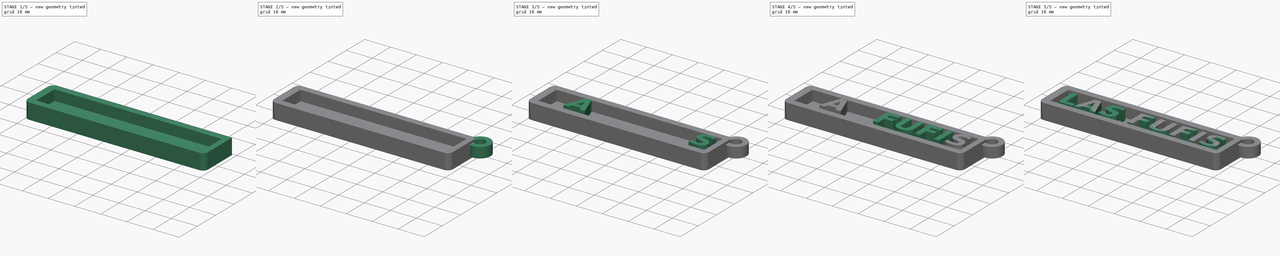
[diagram: build sequence overview — one tinted view per stage of 5, left to right]
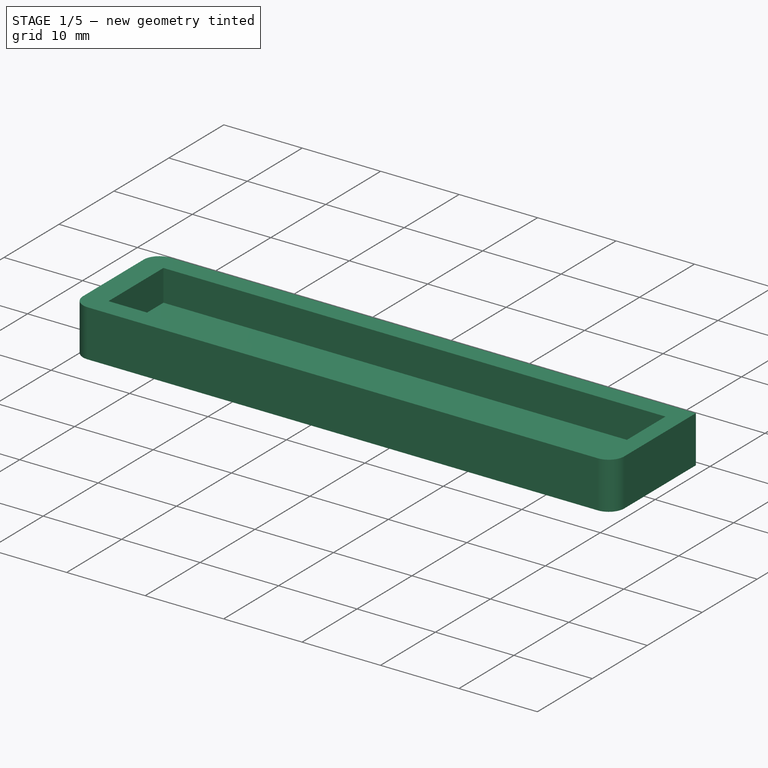
[diagram: stage 1 of 5 — iso view after this stage's code; geometry added in this stage tinted green]
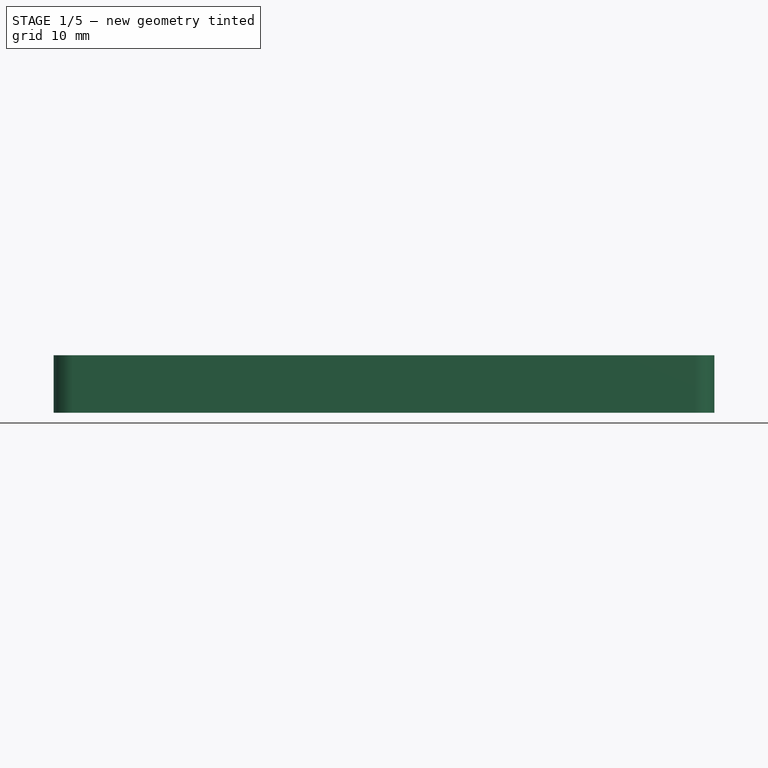
[diagram: stage 1 of 5 — front view after this stage's code; geometry added in this stage tinted green]
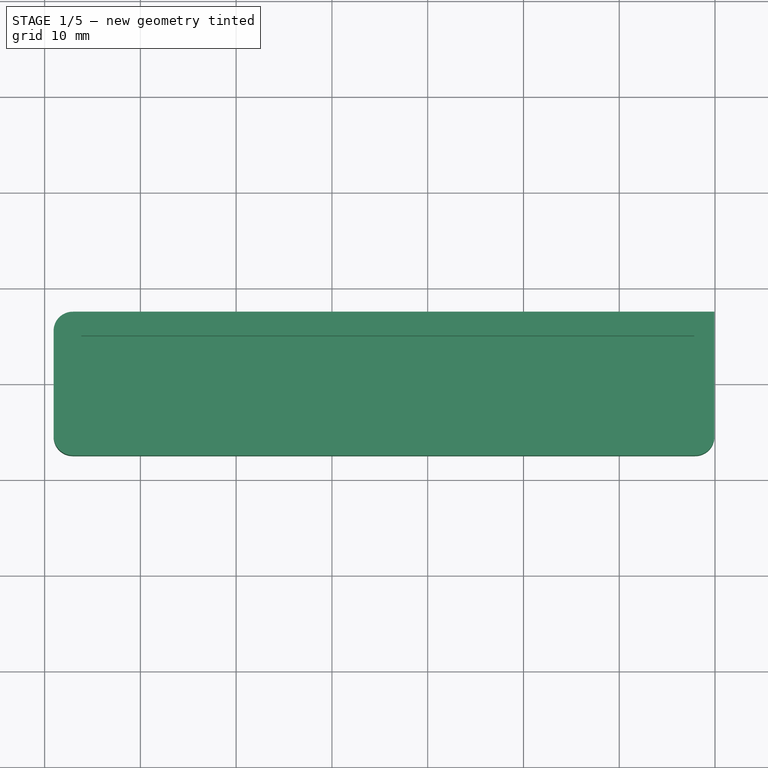
[diagram: stage 1 of 5 — top view after this stage's code; geometry added in this stage tinted green]
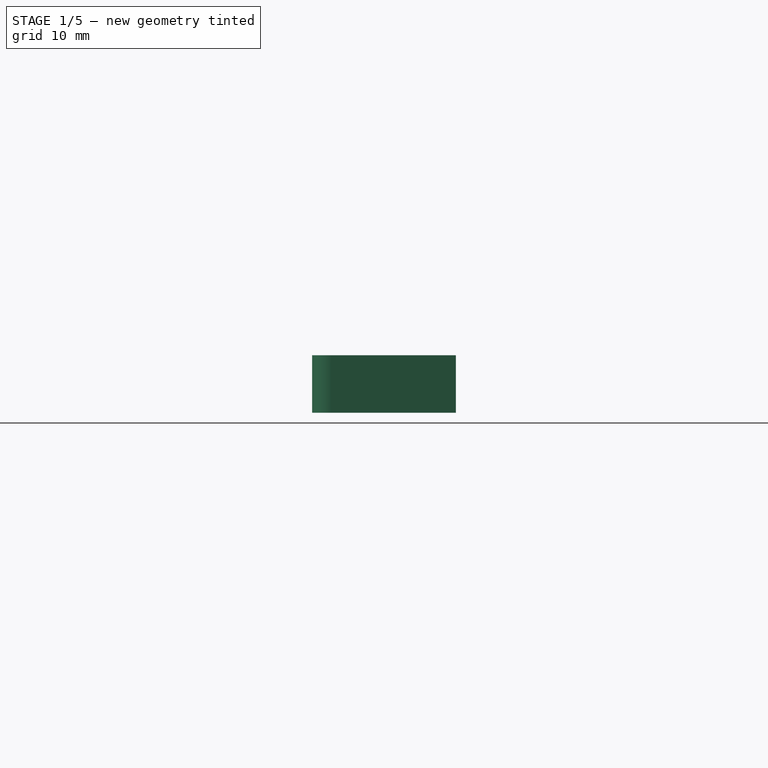
[diagram: stage 1 of 5 — right view after this stage's code; geometry added in this stage tinted green]
FCSTD DOCUMENT  (FreeCAD 0.16R6706 (Git))
Label: FUFIS
License: CreativeCommons Attribution-ShareAlike
LicenseURL: http://creativecommons.org/licenses/by-sa/4.0/
objects: Part::Feature×9, Part::Extrusion×9, Part::Cut×3, Part::MultiFuse×2, Sketcher::SketchObject×2, PartDesign::Pad×2, Part::Cylinder×2, Part::Fillet×2
note: 33 computed .brp shape members not serialized (recipe doc carries the construction recipe); baked Part::Feature solids carry a one-line shape summary decoded from their .brp

FEATURE [Sketcher::SketchObject] Sketch
  sketch-geometry (4):
    g0: LineSegment StartX=-26.1818 StartY=5 StartZ=0 EndX=37.8182 EndY=5 EndZ=0
    g1: LineSegment StartX=37.8182 StartY=5 StartZ=0 EndX=37.8182 EndY=-5 EndZ=0
    g2: LineSegment StartX=37.8182 StartY=-5 StartZ=0 EndX=-26.1818 EndY=-5 EndZ=0
    g3: LineSegment StartX=-26.1818 StartY=-5 StartZ=0 EndX=-26.1818 EndY=5 EndZ=0
  constraints (11):
    c: Coincident(g0,g1)
    c: Coincident(g1,g2)
    c: Coincident(g2,g3)
    c: Coincident(g3,g0)
    c: Horizontal(g0)
    c: Horizontal(g2)
    c: Vertical(g1)
    c: Vertical(g3)
    c: DistanceX(g0,g0) = 64
    c: DistanceY(g3,g3) = 10
    c: Symmetric(g0,g2,g-1)
FEATURE [PartDesign::Pad] Pad
  Length = 4
  Length2 = 100
  Sketch = -> Sketch
  Type = 0
FEATURE [Sketcher::SketchObject] Sketch001
  Placement = pos=(0,0,-2) rot=(0,0,1;0rad)
  sketch-geometry (4):
    g0: LineSegment StartX=-29.063 StartY=7.5 StartZ=0 EndX=39.937 EndY=7.5 EndZ=0
    g1: LineSegment StartX=39.937 StartY=7.5 StartZ=0 EndX=39.937 EndY=-7.5 EndZ=0
    g2: LineSegment StartX=39.937 StartY=-7.5 StartZ=0 EndX=-29.063 EndY=-7.5 EndZ=0
    g3: LineSegment StartX=-29.063 StartY=-7.5 StartZ=0 EndX=-29.063 EndY=7.5 EndZ=0
  constraints (11):
    c: Coincident(g0,g1)
    c: Coincident(g1,g2)
    c: Coincident(g2,g3)
    c: Coincident(g3,g0)
    c: Horizontal(g0)
    c: Horizontal(g2)
    c: Vertical(g1)
    c: Vertical(g3)
    c: DistanceY(g1,g1) = 15
    c: DistanceX(g2,g2) = 69
    c: Symmetric(g0,g2,g-1)
FEATURE [PartDesign::Pad] Pad001
  Length = 6
  Length2 = 100
  Placement = pos=(0,0,-2) rot=(0,0,1;0rad)
  Sketch = -> Sketch001
  Type = 0
FEATURE [Part::Cut] Cut001
  Base = -> Pad001
  Tool = -> Pad
FEATURE [Part::Fillet] Fillet
  Base = -> Cut001
  Edges = 3 edges r=2: [Edge1,Edge5,Edge8]
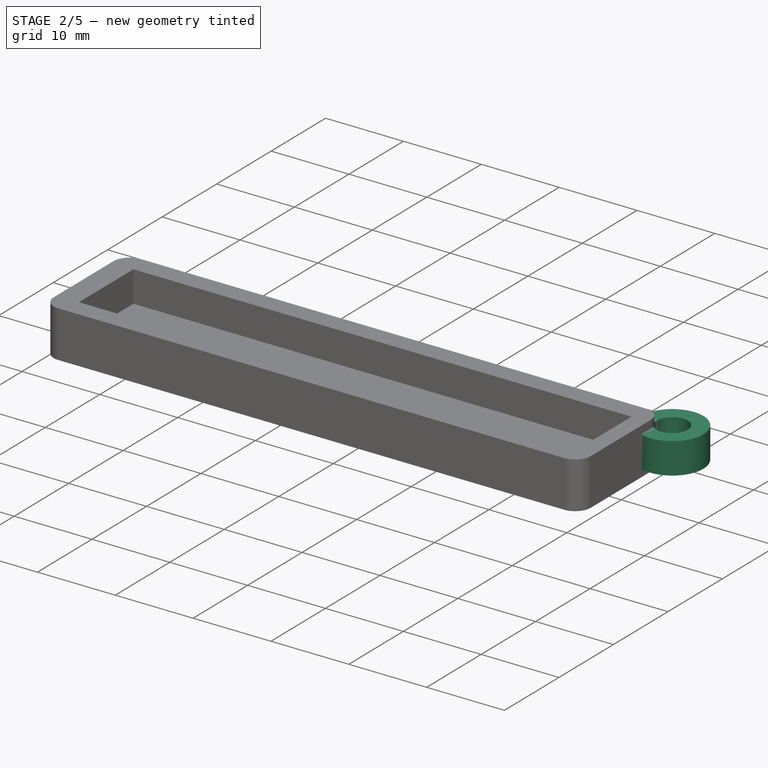
[diagram: stage 2 of 5 — iso view after this stage's code; geometry added in this stage tinted green]
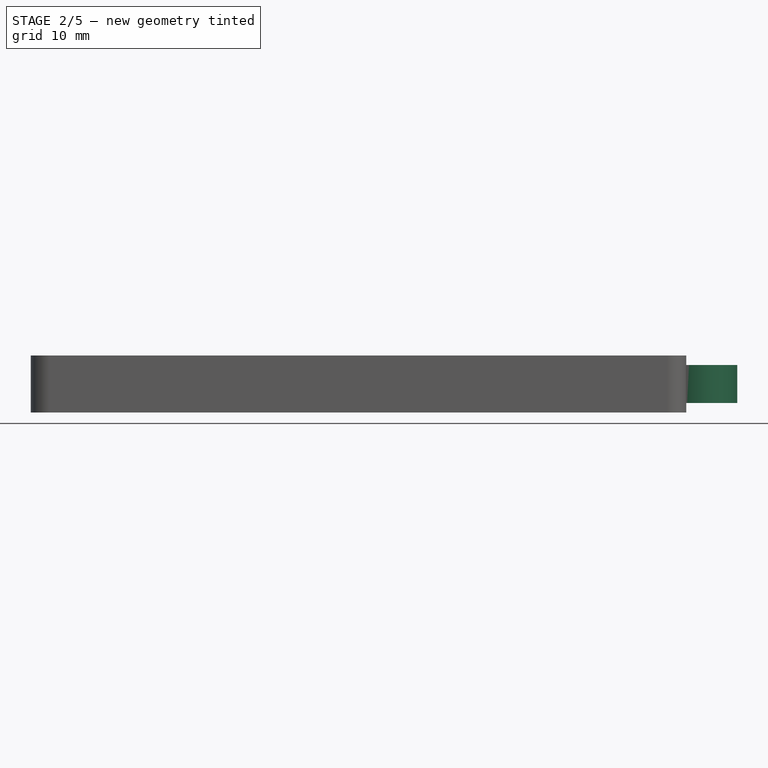
[diagram: stage 2 of 5 — front view after this stage's code; geometry added in this stage tinted green]
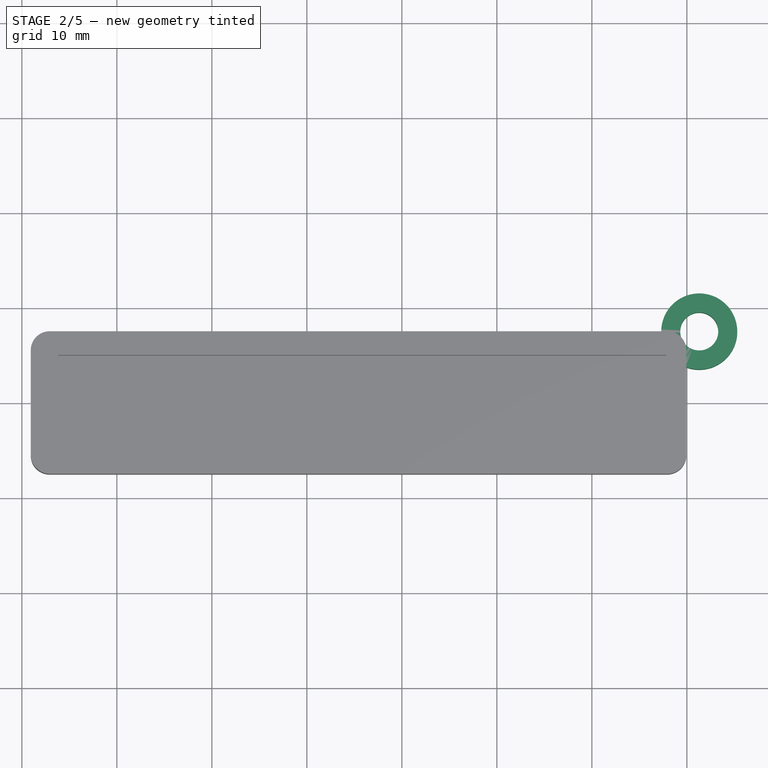
[diagram: stage 2 of 5 — top view after this stage's code; geometry added in this stage tinted green]
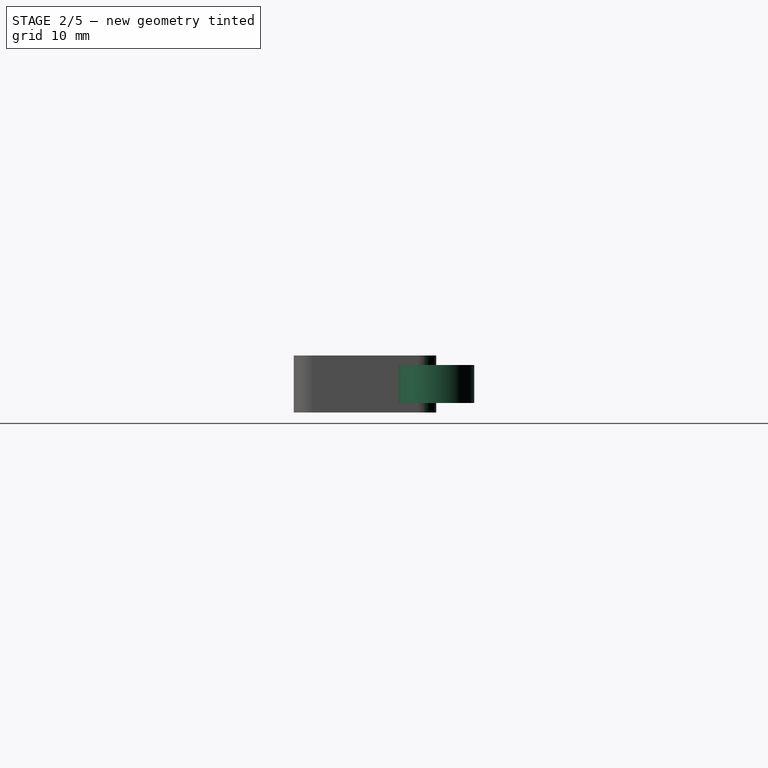
[diagram: stage 2 of 5 — right view after this stage's code; geometry added in this stage tinted green]
FEATURE [Part::Cylinder] Cylinder  label="Cilindro"
  Angle = 360
  Height = 4
  Radius = 4
FEATURE [Part::Cylinder] Cylinder001  label="Cilindro001"
  Angle = 360
  Height = 10
  Placement = pos=(0,0,-3) rot=(0,0,1;0rad)
  Radius = 2
FEATURE [Part::Cut] Cut005  label="aro"
  Base = -> Cylinder
  Placement = pos=(41.3,7.5,-1) rot=(0,0,1;0rad)
  Tool = -> Cylinder001
FEATURE [Part::Fillet] Fillet001
  Base = -> Fillet
  Edges = 1 edges r=2: [Edge3]
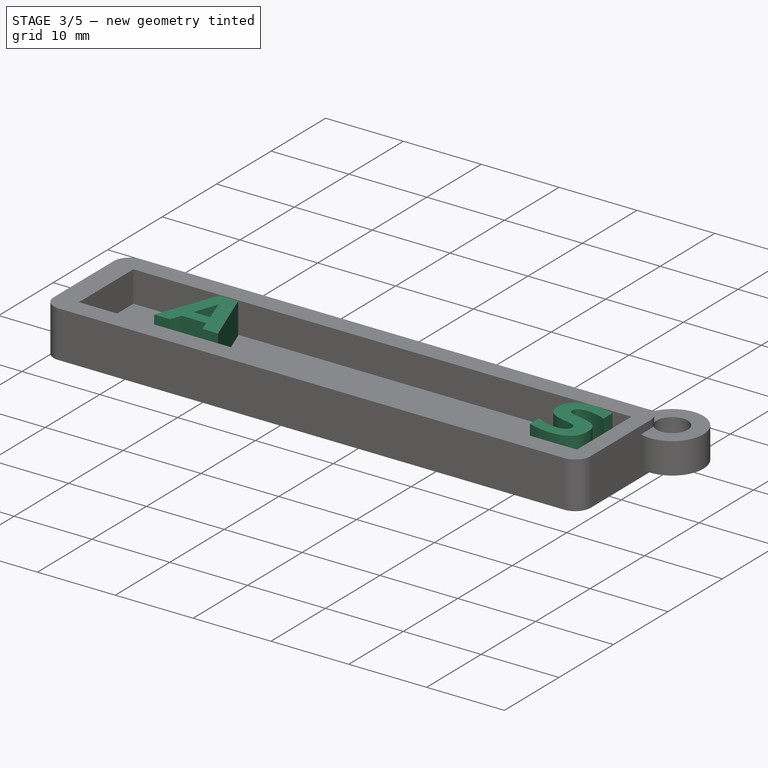
[diagram: stage 3 of 5 — iso view after this stage's code; geometry added in this stage tinted green]
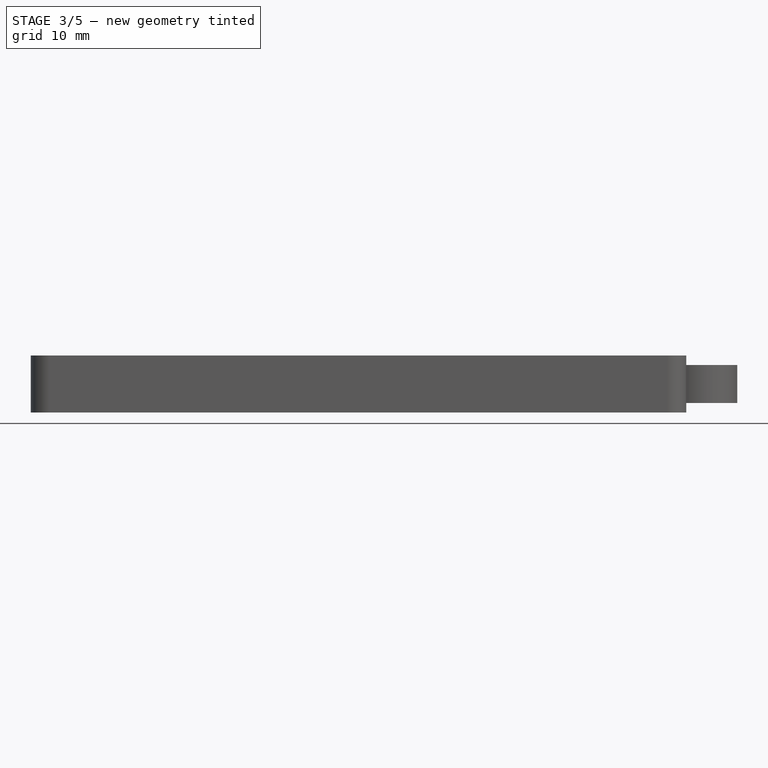
[diagram: stage 3 of 5 — front view after this stage's code; geometry added in this stage tinted green]
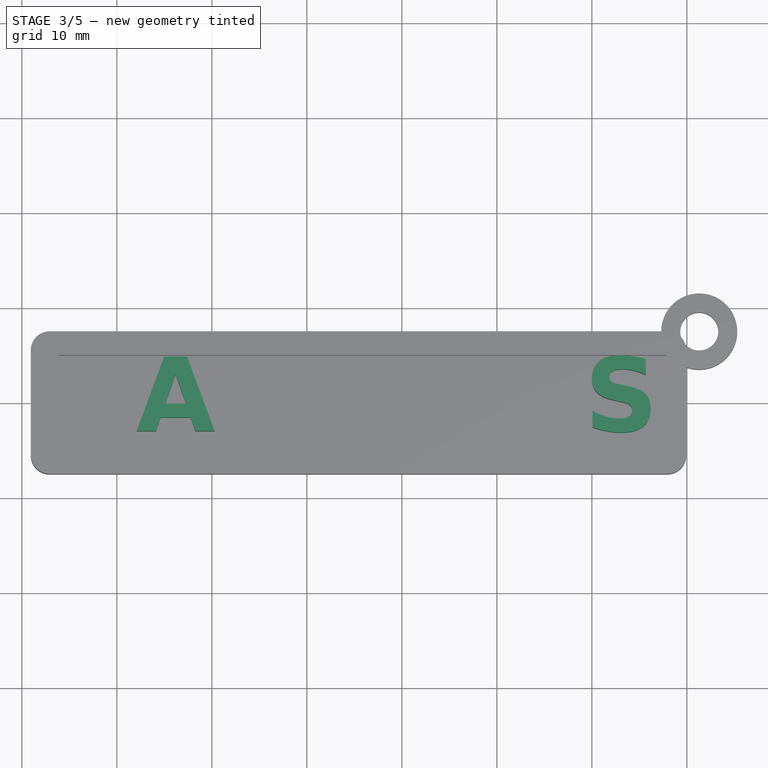
[diagram: stage 3 of 5 — top view after this stage's code; geometry added in this stage tinted green]
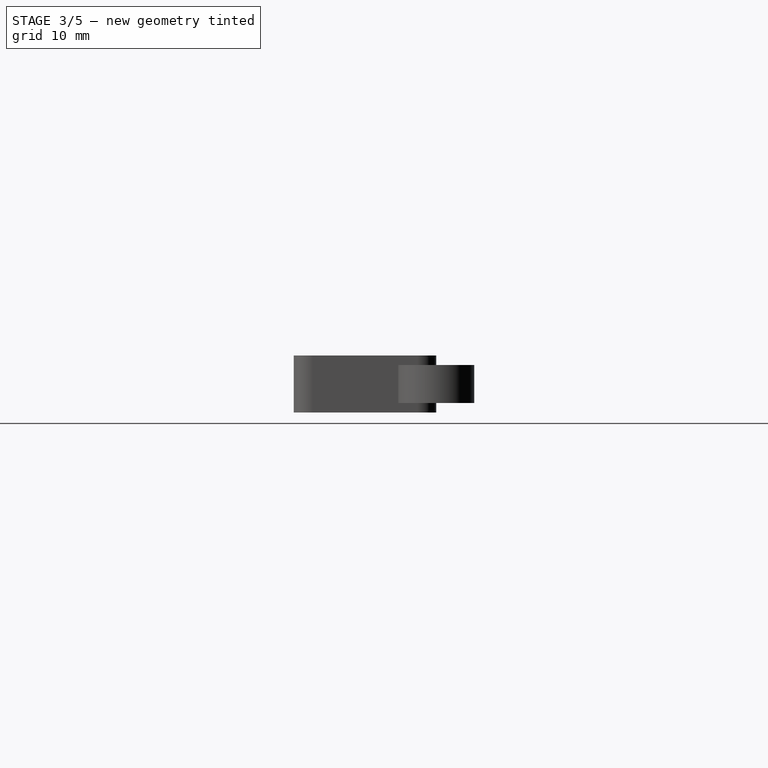
[diagram: stage 3 of 5 — right view after this stage's code; geometry added in this stage tinted green]
FEATURE [Part::Extrusion] Extrude001
  Base = -> path3343
  Dir = (0,0,4)
  Solid = true
FEATURE [Part::Extrusion] Extrude002
  Base = -> path3343001
  Dir = (0,0,4)
  Solid = true
FEATURE [Part::Extrusion] Extrude008
  Base = -> path3355
  Dir = (0,0,4)
  Solid = true
FEATURE [Part::Cut] Cut
  Base = -> Extrude001
  Tool = -> Extrude002
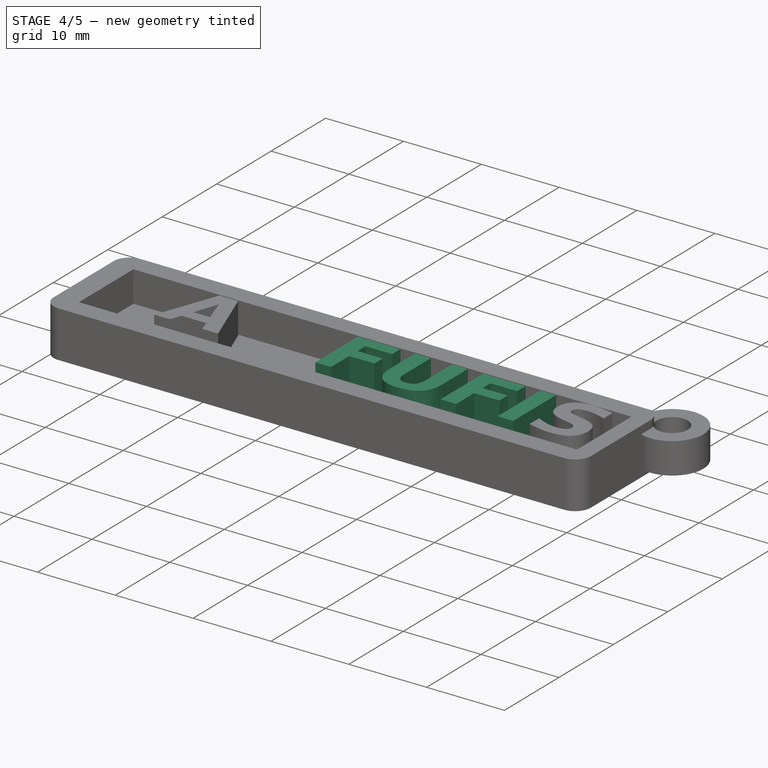
[diagram: stage 4 of 5 — iso view after this stage's code; geometry added in this stage tinted green]
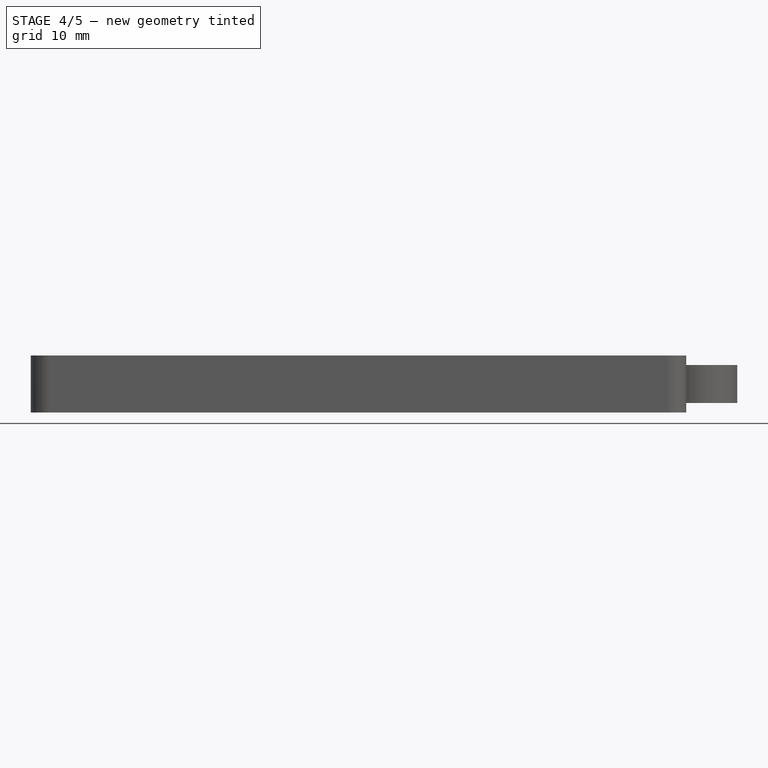
[diagram: stage 4 of 5 — front view after this stage's code; geometry added in this stage tinted green]
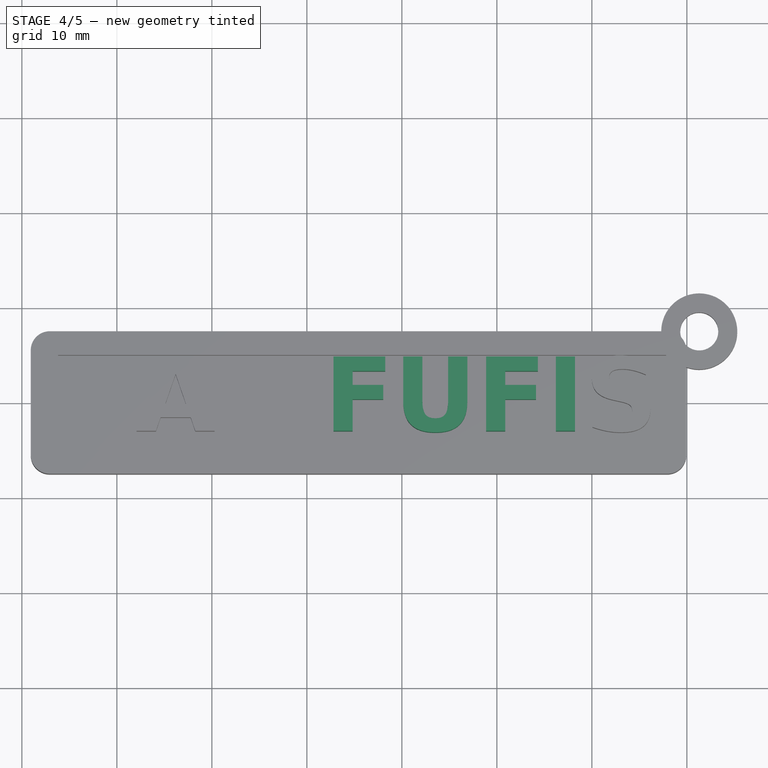
[diagram: stage 4 of 5 — top view after this stage's code; geometry added in this stage tinted green]
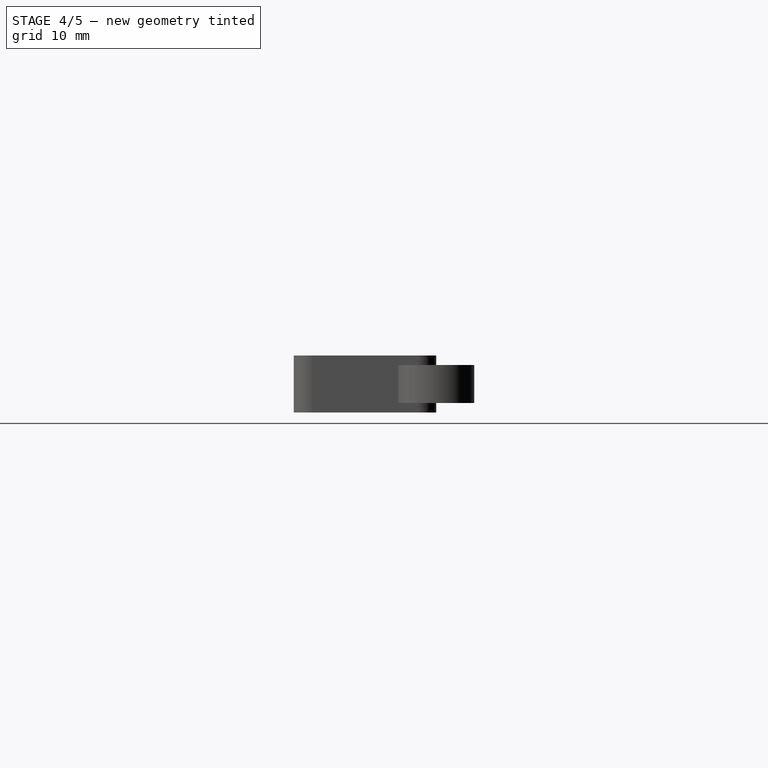
[diagram: stage 4 of 5 — right view after this stage's code; geometry added in this stage tinted green]
FEATURE [Part::Extrusion] Extrude004
  Base = -> path3347
  Dir = (0,0,4)
  Solid = true
FEATURE [Part::Extrusion] Extrude005
  Base = -> path3349
  Dir = (0,0,4)
  Solid = true
FEATURE [Part::Extrusion] Extrude006
  Base = -> path3351
  Dir = (0,0,4)
  Solid = true
FEATURE [Part::Extrusion] Extrude007
  Base = -> path3353
  Dir = (0,0,4)
  Solid = true
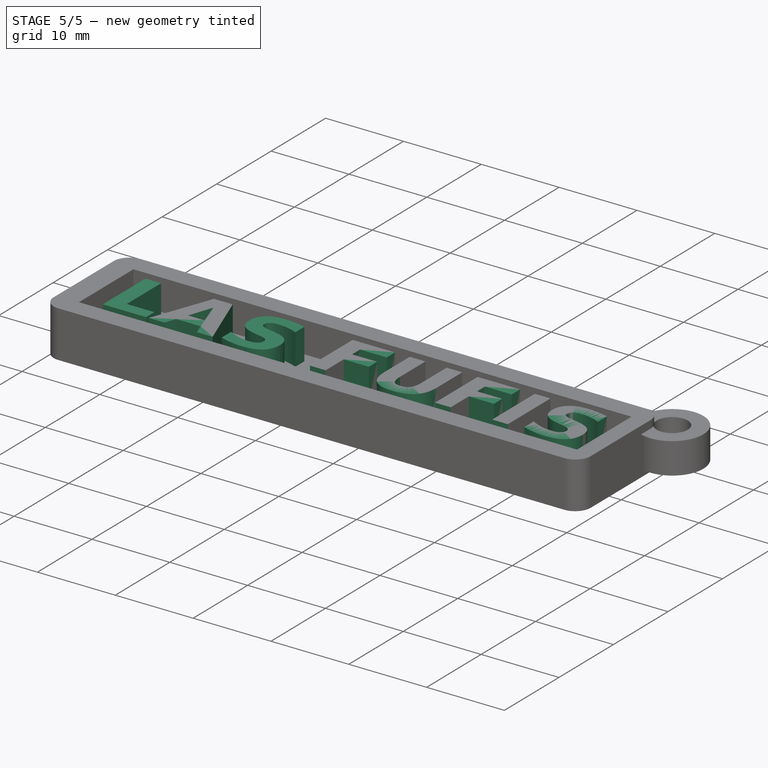
[diagram: stage 5 of 5 — iso view after this stage's code; geometry added in this stage tinted green]
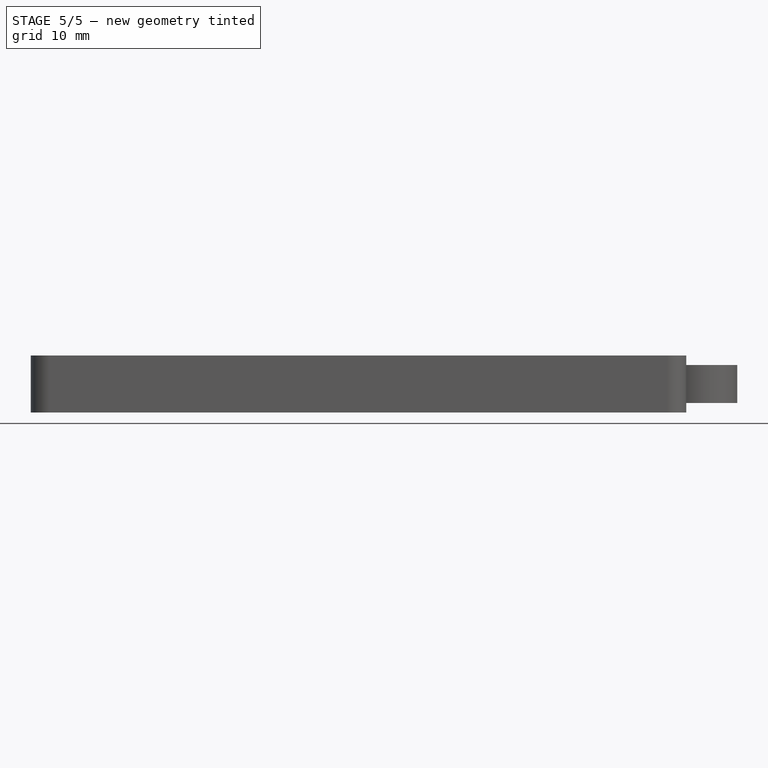
[diagram: stage 5 of 5 — front view after this stage's code; geometry added in this stage tinted green]
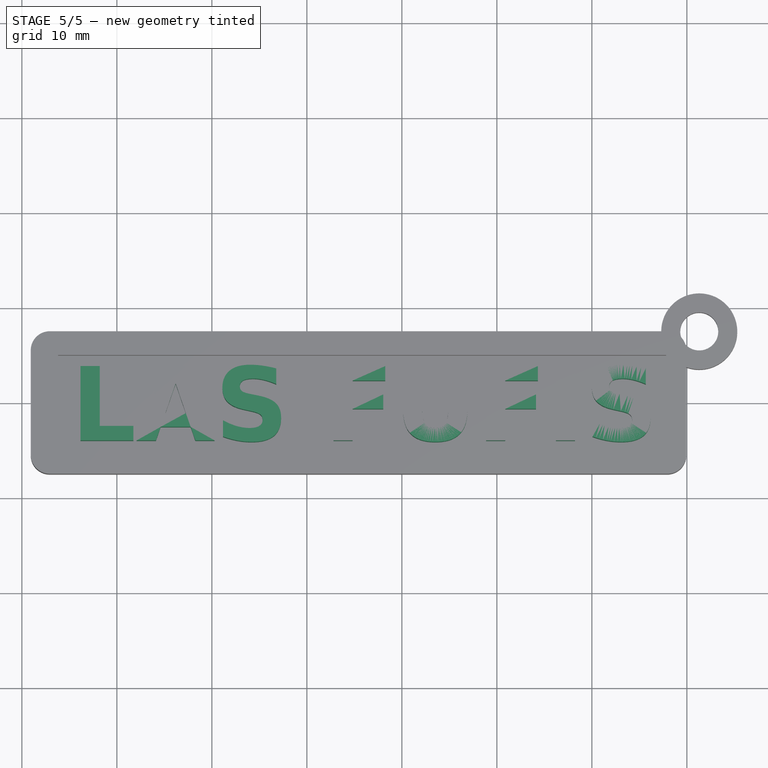
[diagram: stage 5 of 5 — top view after this stage's code; geometry added in this stage tinted green]
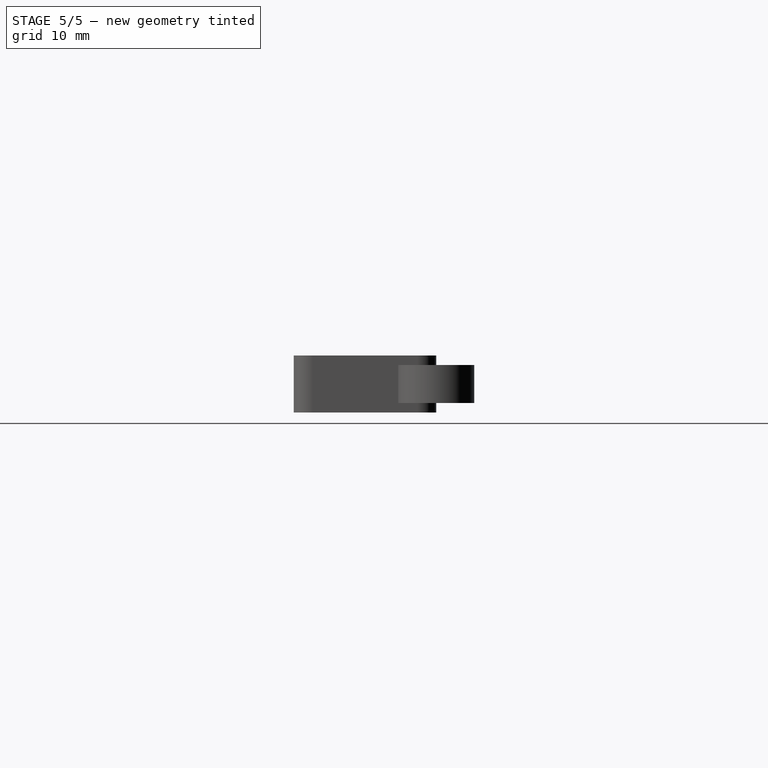
[diagram: stage 5 of 5 — right view after this stage's code; geometry added in this stage tinted green]
FEATURE [Part::Feature] path3341
  shape: bbox 5.564 x 7.83 x 2e-07 mm, 0 faces, 0 solids (baked)
FEATURE [Part::Feature] path3343
  shape: bbox 8.207 x 7.83 x 2e-07 mm, 0 faces, 0 solids (baked)
FEATURE [Part::Feature] path3343001
  shape: bbox 2.145 x 3.115 x 2e-07 mm, 0 faces, 0 solids (baked)
FEATURE [Part::Feature] path3345
  shape: bbox 6.178 x 8.123 x 2e-07 mm, 0 faces, 0 solids (baked)
FEATURE [Part::Feature] path3347
  shape: bbox 5.449 x 7.83 x 2e-07 mm, 0 faces, 0 solids (baked)
FEATURE [Part::Feature] path3349
  shape: bbox 6.749 x 7.982 x 2e-07 mm, 0 faces, 0 solids (baked)
FEATURE [Part::Feature] path3351
  shape: bbox 5.449 x 7.83 x 2e-07 mm, 0 faces, 0 solids (baked)
FEATURE [Part::Feature] path3353
  shape: bbox 2.019 x 7.83 x 2e-07 mm, 0 faces, 0 solids (baked)
FEATURE [Part::Feature] path3355
  shape: bbox 6.178 x 8.123 x 2e-07 mm, 0 faces, 0 solids (baked)
FEATURE [Part::Extrusion] Extrude
  Base = -> path3341
  Dir = (0,0,4)
  Solid = true
FEATURE [Part::Extrusion] Extrude003
  Base = -> path3345
  Dir = (0,0,4)
  Solid = true
FEATURE [Part::MultiFuse] Fusion  label="LETRAS"
  Placement = pos=(0,-1,0) rot=(0,0,1;0rad)
  Shapes = -> [Extrude,Cut,Extrude003,Extrude006,Extrude004,Extrude005,Extrude007,Extrude008]
FEATURE [Part::MultiFuse] Fusion001
  Shapes = -> [Fillet001,Cut005,Fusion]
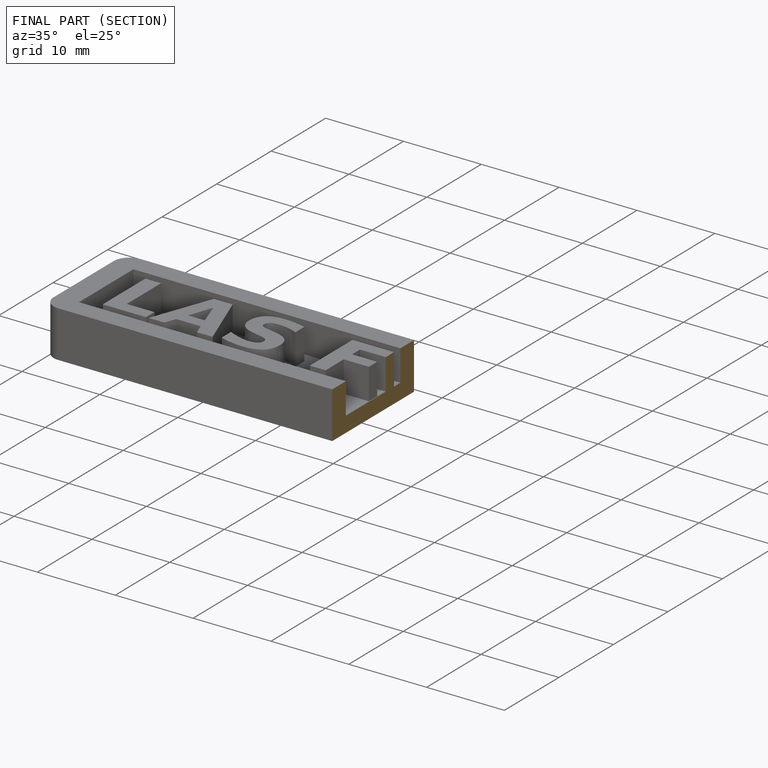
[diagram: finished part — half-section view (interior)]
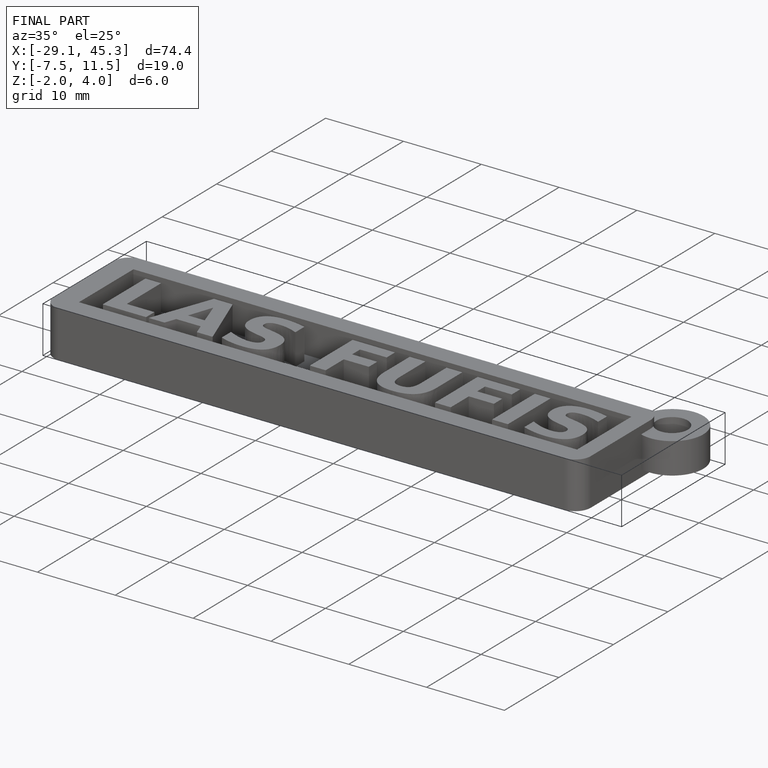
[diagram: finished part — iso view with bounding-box wireframe]
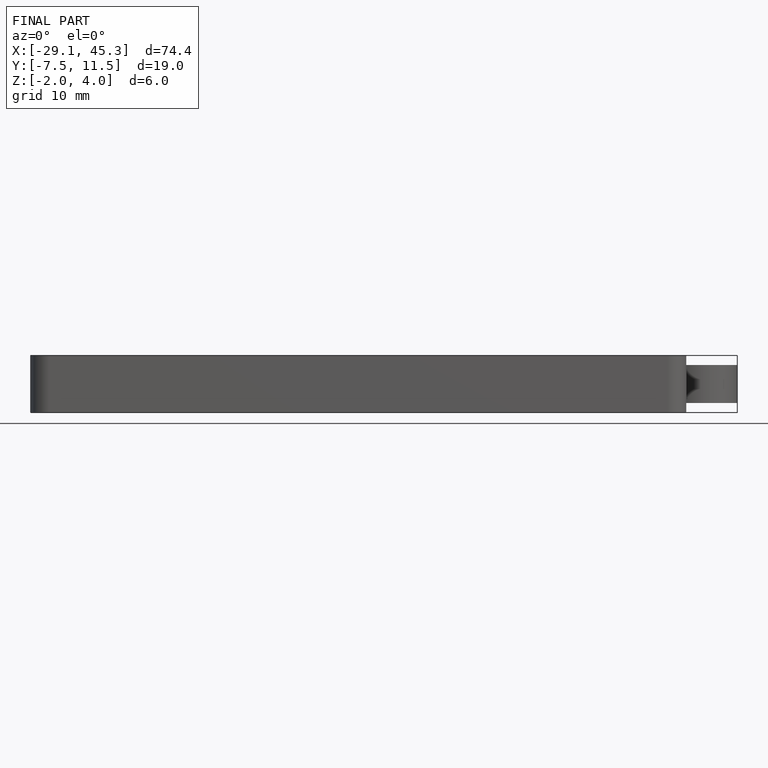
[diagram: finished part — front view with bounding-box wireframe]
